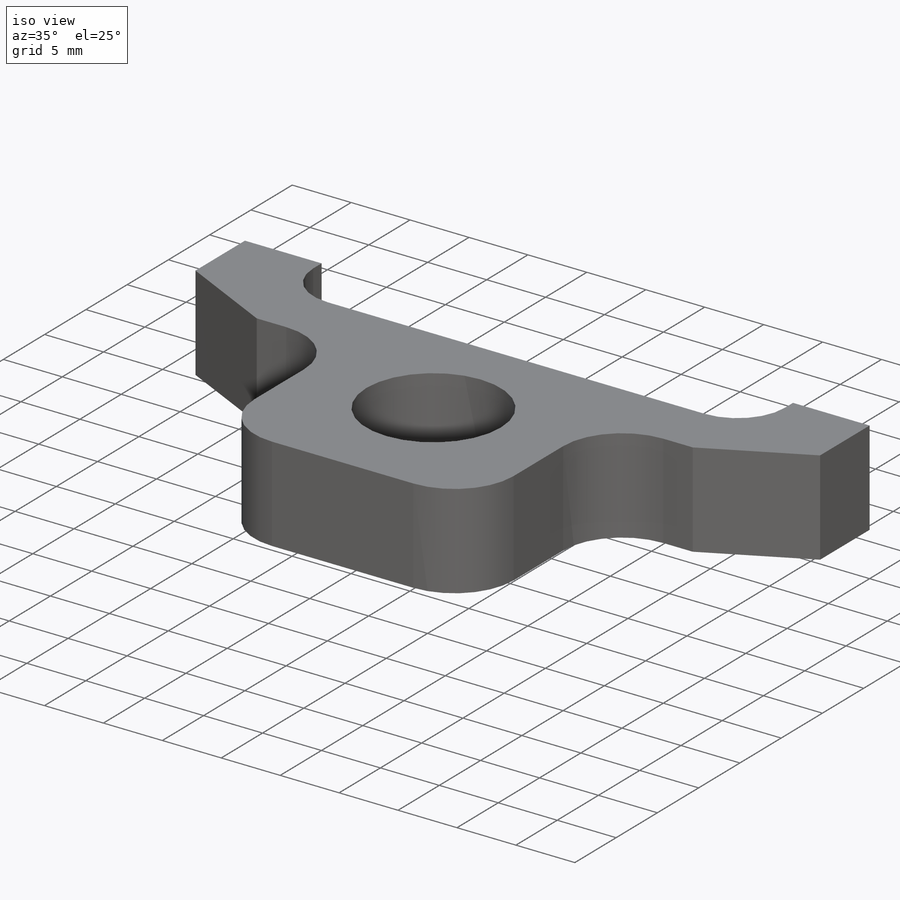
[diagram: iso view]
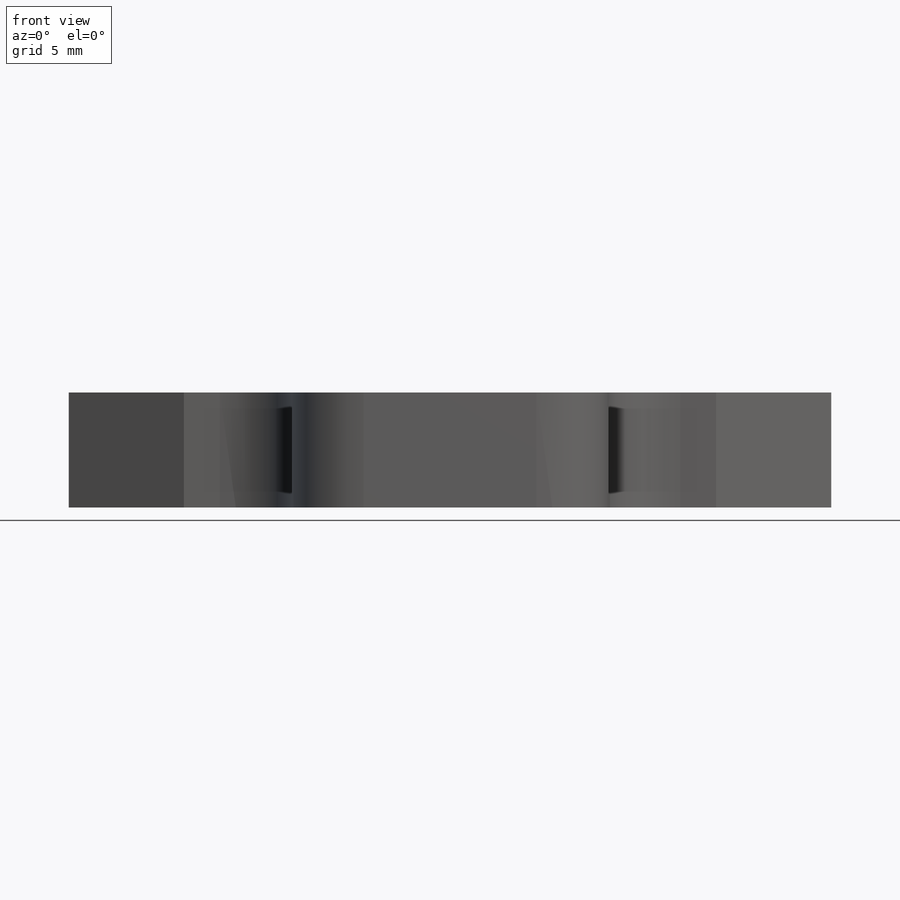
[diagram: front view]
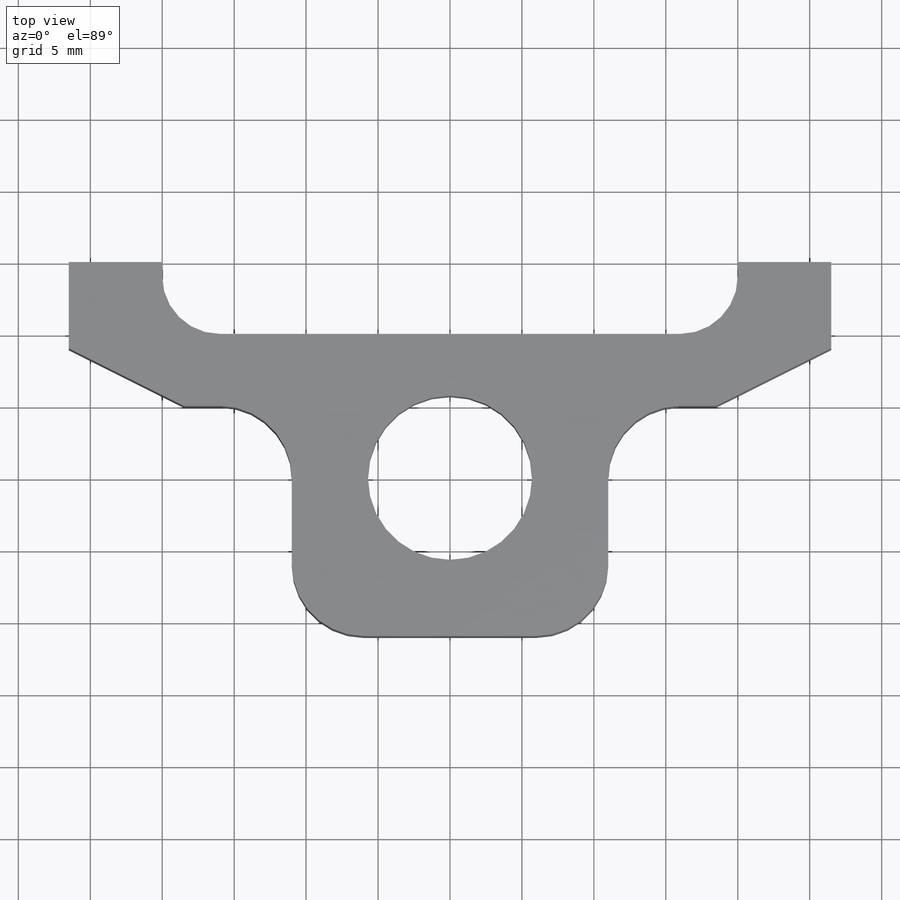
[diagram: top view]
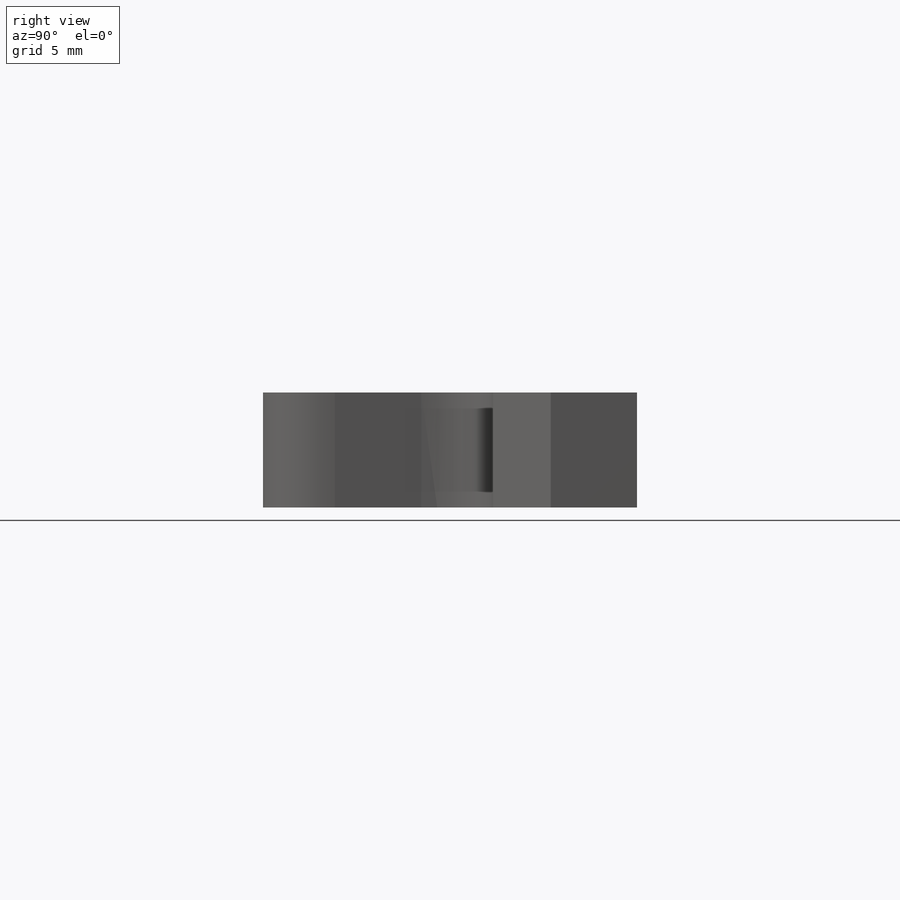
[diagram: right view]
SOLIDWORKS PART (.sldprt)
format: sldprt  version: not decoded by parser v0  size: 260,096 bytes
history: native  units: mm
features: sketch x8, cut_extrude x3, hole x2, fillet x2, chamfer x2, material x1, plane x1, extrude x1 (+13 scaffold rows collapsed)
feature tree (33):
  scaffold x13  (default folders/planes/origin — collapsed)
  material  "Material <not specified>"
  plane  "Plane1"
  sketch  "Sketch1"
  extrude  "Boss-Extrude1"  Depth=8mm
  sketch  "Sketch2"
  cut_extrude  "Cut-Extrude1"  Depth=8mm
  sketch  "Sketch3"
  cut_extrude  "Cut-Extrude2"  Depth=8mm
  sketch  "Sketch4"
  cut_extrude  "Cut-Extrude3"  Depth=8mm
  hole  "CBORE for M10 Hex Head Bolt1"  Diameter=11.4mm Depth=8mm
  sketch  "Sketch6"
  sketch  "Sketch5"  dims[hole-wizard template sketch: 41 standard entries collapsed; hole parameters kept: c12.Thru Hole Dia.=11.4mm c12.Thru Hole Depth=8.0mm c12.C'Bore Dia.=16.2mm c12.C'Bore Depth=2.0mm]
  hole  "Ø3.3 (3.3) Diameter Hole1"  Diameter=3.3mm Depth=6mm
  sketch  "Sketch8"
  sketch  "Sketch7"  dims[hole-wizard template sketch: 47 standard entries collapsed; hole parameters kept: c15.Hole Depth=6.0mm c15.D3=~14.816244mm c15.Drill Angle=118.0deg]
  fillet  "Fillet1"  Radius=4mm
  fillet  "Fillet2"  Radius=5mm
  chamfer  "Chamfer1"  Distance=8mm
  chamfer  "Chamfer2"  Distance=4mm
decode coverage: 12 of 18 modeling features carry decoded parameters
note: ~ marks probable driven/reference dimensions
note: suppression state not decoded; provenance and decode notes live in map.json
